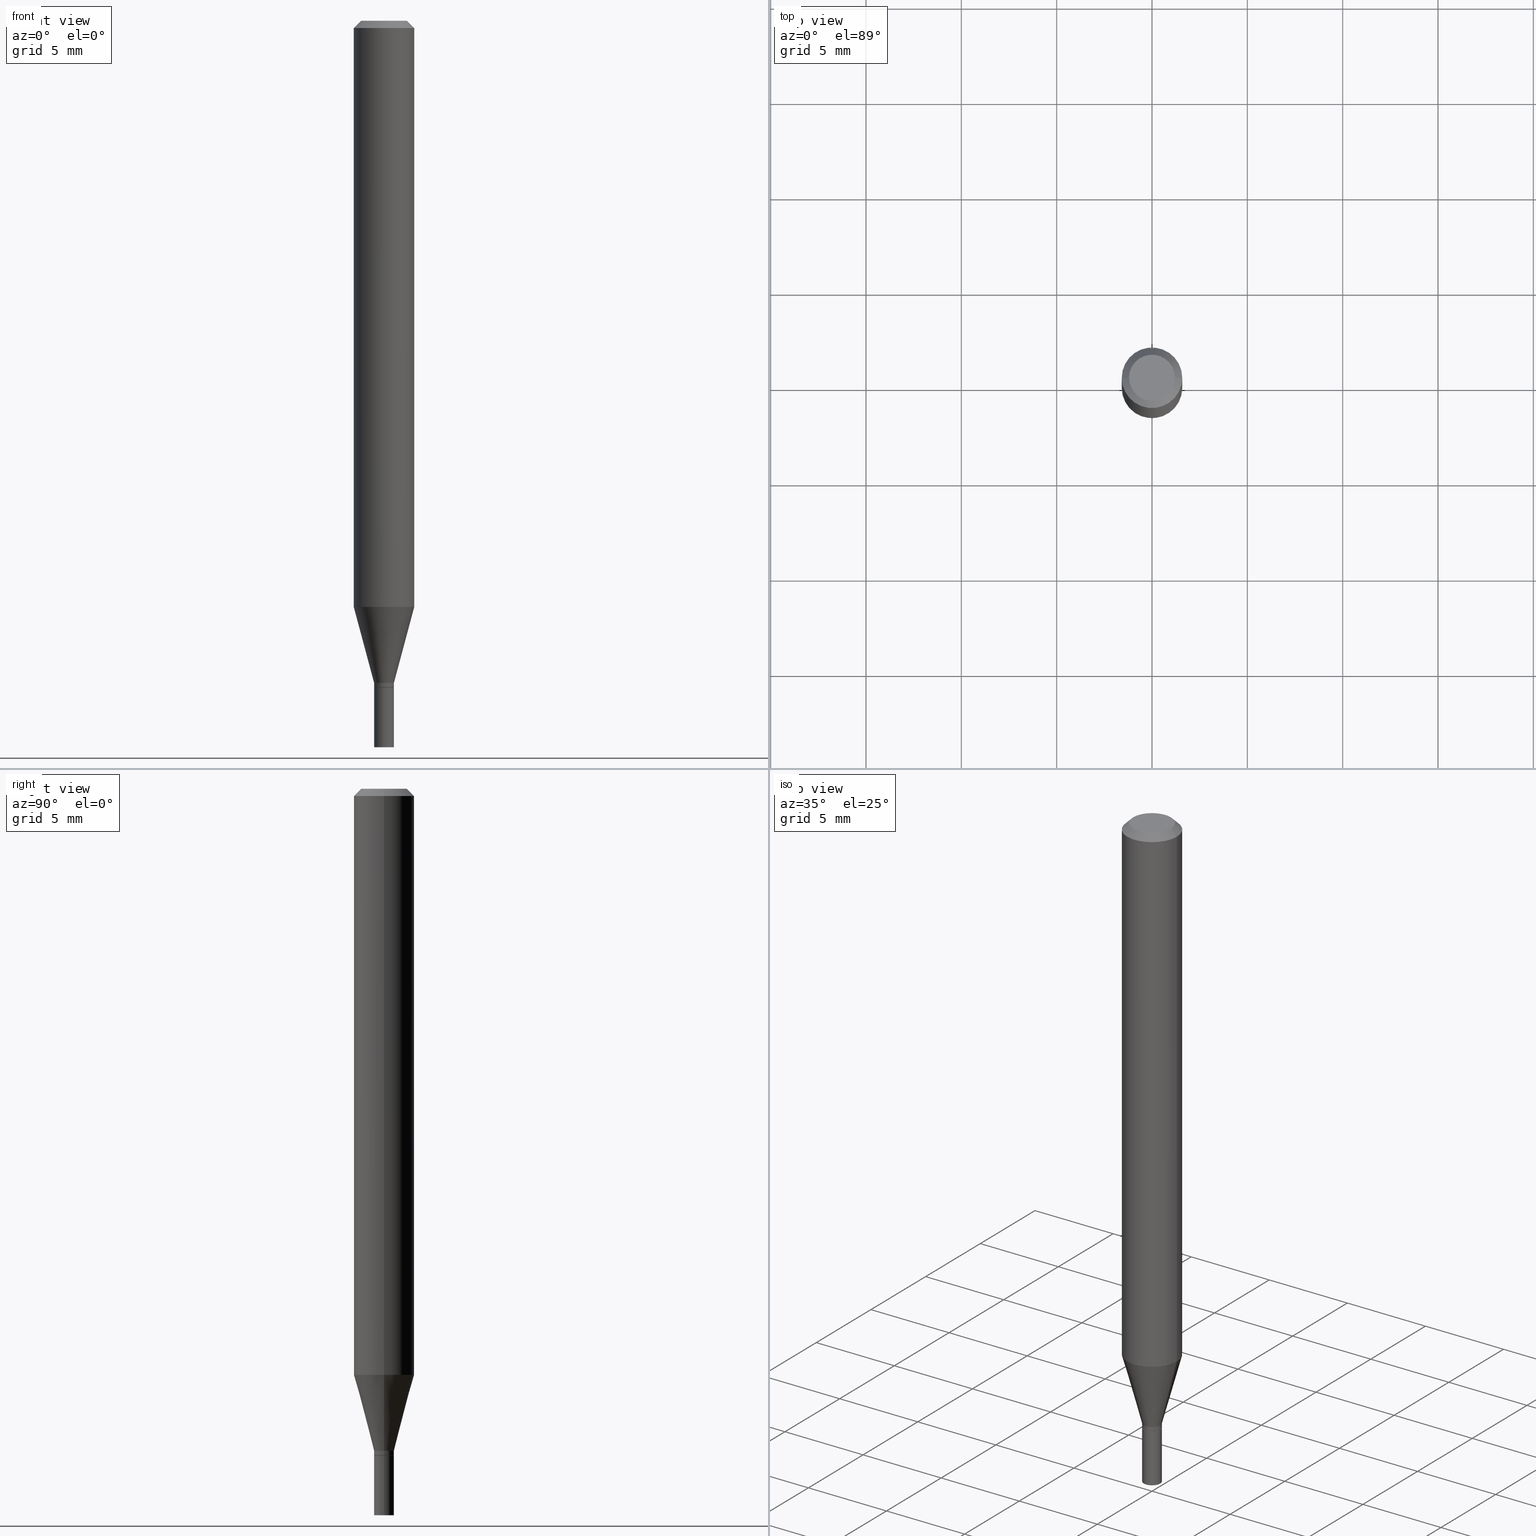
[diagram: canonical four-view strip — front | top / right | iso, engineering-drawing reading convention]
A machine part, canonical four-view strip (front | top / right | iso — engineering-drawing reading convention). The complete STEP part file that produces these views, byte-faithful:
ISO-10303-21;
HEADER;
FILE_DESCRIPTION (( 'STEP AP203' ),
    '1' );
FILE_NAME ('00479.STEP',
    '2024-03-19T21:19:28',
    ( '' ),
    ( '' ),
    'SwSTEP 2.0',
    'SolidWorks 2023',
    '' );
FILE_SCHEMA (( 'CONFIG_CONTROL_DESIGN' ));
ENDSEC;

DATA;
#1 = ORIENTED_EDGE ( 'NONE', *, *, #195, .T. ) ;
#2 = LINE ( 'NONE', #254, #170 ) ;
#3 = ORIENTED_EDGE ( 'NONE', *, *, #204, .F. ) ;
#4 = CARTESIAN_POINT ( 'NONE',  ( 0.02000000000000000042, -4.947429057140737540E-15, -1.377000000000000002 ) ) ;
#5 = EDGE_CURVE ( 'NONE', #395, #257, #318, .T. ) ;
#6 = AXIS2_PLACEMENT_3D ( 'NONE', #271, #225, #75 ) ;
#7 = DIRECTION ( 'NONE',  ( -2.445468806185136597E-29, 3.491481338843145583E-15, 1.000000000000000000 ) ) ;
#8 = CC_DESIGN_APPROVAL ( #155, ( #238 ) ) ;
#9 = CARTESIAN_POINT ( 'NONE',  ( 3.668203209277705088E-31, -5.237222008264718399E-17, -0.01499999999999999944 ) ) ;
#10 = DIRECTION ( 'NONE',  ( -2.445468806185136597E-29, 3.491481338843145583E-15, 1.000000000000000000 ) ) ;
#11 = DIRECTION ( 'NONE',  ( 1.000000000000000000, -6.982962677686288010E-15, 0.000000000000000000 ) ) ;
#12 = CYLINDRICAL_SURFACE ( 'NONE', #39, 0.02049999999999992453 ) ;
#13 = CARTESIAN_POINT ( 'NONE',  ( 3.367410546116933466E-29, -4.807769803587011733E-15, -1.377000000000000002 ) ) ;
#14 = AXIS2_PLACEMENT_3D ( 'NONE', #401, #83, #229 ) ;
#15 = CIRCLE ( 'NONE', #458, 0.06250000000000000000 ) ;
#16 =( LENGTH_UNIT ( ) NAMED_UNIT ( * ) SI_UNIT ( $, .METRE. ) );
#17 = FACE_OUTER_BOUND ( 'NONE', #144, .T. ) ;
#18 = FACE_OUTER_BOUND ( 'NONE', #186, .T. ) ;
#19 = DIRECTION ( 'NONE',  ( 1.000000000000000000, -6.982962677686266711E-15, 0.000000000000000000 ) ) ;
#20 = CC_DESIGN_PERSON_AND_ORGANIZATION_ASSIGNMENT ( #100, #243, ( #382 ) ) ;
#21 = VERTEX_POINT ( 'NONE', #265 ) ;
#22 = CLOSED_SHELL ( 'NONE', ( #27, #263, #348, #182 ) ) ;
#23 = AXIS2_PLACEMENT_3D ( 'NONE', #129, #383, #19 ) ;
#24 = ADVANCED_BREP_SHAPE_REPRESENTATION ( '00479', ( #359, #194, #424 ), #391 ) ;
#25 = EDGE_LOOP ( 'NONE', ( #325, #217, #198, #67 ) ) ;
#26 = PERSON_AND_ORGANIZATION_ROLE ( 'classification_officer' ) ;
#27 = ADVANCED_FACE ( 'NONE', ( #17 ), #220, .T. ) ;
#28 = PERSON_AND_ORGANIZATION ( #301, #153 ) ;
#29 = CARTESIAN_POINT ( 'NONE',  ( 3.342955858055081921E-29, -4.772854990198580872E-15, -1.367000000000000215 ) ) ;
#30 = APPLICATION_PROTOCOL_DEFINITION ( 'international standard', 'config_control_design', 1994, #427 ) ;
#31 = CONICAL_SURFACE ( 'NONE', #233, 0.02000000000000000042, 0.7853981633974739252 ) ;
#32 = CC_DESIGN_APPROVAL ( #253, ( #449 ) ) ;
#33 = ORIENTED_EDGE ( 'NONE', *, *, #303, .T. ) ;
#34 = CARTESIAN_POINT ( 'NONE',  ( 2.959638077068758052E-29, -4.225578788688450652E-15, -1.210253866082107610 ) ) ;
#35 = APPROVAL_ROLE ( '' ) ;
#36 = VERTEX_POINT ( 'NONE', #330 ) ;
#37 = EDGE_CURVE ( 'NONE', #459, #102, #390, .T. ) ;
#38 = ORIENTED_EDGE ( 'NONE', *, *, #72, .F. ) ;
#39 = AXIS2_PLACEMENT_3D ( 'NONE', #406, #10, #121 ) ;
#40 = VERTEX_POINT ( 'NONE', #445 ) ;
#41 = DIRECTION ( 'NONE',  ( -2.445468806185136877E-29, 3.491481338843145188E-15, 1.000000000000000000 ) ) ;
#42 = ORIENTED_EDGE ( 'NONE', *, *, #79, .F. ) ;
#43 = CARTESIAN_POINT ( 'NONE',  ( -0.06250000000000000000, -1.694886294535486249E-15, -0.01499999999999999944 ) ) ;
#44 = CARTESIAN_POINT ( 'NONE',  ( 3.367410546116933466E-29, -4.807769803587011733E-15, -1.377000000000000002 ) ) ;
#45 = AXIS2_PLACEMENT_3D ( 'NONE', #278, #201, #344 ) ;
#46 = DIMENSIONAL_EXPONENTS ( 1.000000000000000000, 0.000000000000000000, 0.000000000000000000, 0.000000000000000000, 0.000000000000000000, 0.000000000000000000, 0.000000000000000000 ) ;
#47 = CARTESIAN_POINT ( 'NONE',  ( -0.06250000000000000000, 3.840629472727444916E-16, -0.01499999999999999944 ) ) ;
#48 = DIRECTION ( 'NONE',  ( 1.000000000000000000, -6.982962677686288010E-15, 0.000000000000000000 ) ) ;
#49 = DIRECTION ( 'NONE',  ( 1.000000000000000000, -6.982962677686262766E-15, 0.000000000000000000 ) ) ;
#50 = CARTESIAN_POINT ( 'NONE',  ( -0.02049999999999992453, -4.627193729367760599E-15, -1.367000000000000215 ) ) ;
#51 = PERSON_AND_ORGANIZATION_ROLE ( 'design_supplier' ) ;
#52 = ORIENTED_EDGE ( 'NONE', *, *, #400, .F. ) ;
#53 = CIRCLE ( 'NONE', #340, 0.02000000000000000042 ) ;
#54 = DIRECTION ( 'NONE',  ( -2.438088387897960049E-29, 3.491481338843145188E-15, 1.000000000000000000 ) ) ;
#55 = CARTESIAN_POINT ( 'NONE',  ( 1.431507348926021194E-16, 0.02049999999999519568, -1.377000000000000002 ) ) ;
#56 = DIRECTION ( 'NONE',  ( 2.445468806185136597E-29, -3.491481338843145583E-15, -1.000000000000000000 ) ) ;
#57 = EDGE_LOOP ( 'NONE', ( #64, #73, #70, #262 ) ) ;
#58 = DIRECTION ( 'NONE',  ( -2.445468806185136597E-29, 3.491481338843145583E-15, 1.000000000000000000 ) ) ;
#59 = DIRECTION ( 'NONE',  ( -2.445468806185136877E-29, 3.491481338843145188E-15, 1.000000000000000000 ) ) ;
#60 = CIRCLE ( 'NONE', #429, 0.02049999999999992453 ) ;
#61 = CARTESIAN_POINT ( 'NONE',  ( 0.06250000000000000000, -4.364351673553916694E-16, 3.047610484872459871E-30 ) ) ;
#62 = AXIS2_PLACEMENT_3D ( 'NONE', #199, #272, #342 ) ;
#63 = EDGE_CURVE ( 'NONE', #216, #352, #111, .T. ) ;
#64 = ORIENTED_EDGE ( 'NONE', *, *, #374, .F. ) ;
#65 = DIRECTION ( 'NONE',  ( -2.445468806185136597E-29, 3.491481338843145583E-15, 1.000000000000000000 ) ) ;
#66 = PRODUCT_DEFINITION_FORMATION_WITH_SPECIFIED_SOURCE ( 'ANY', '', #382, .NOT_KNOWN. ) ;
#67 = ORIENTED_EDGE ( 'NONE', *, *, #389, .F. ) ;
#68 = ADVANCED_FACE ( 'NONE', ( #368 ), #221, .T. ) ;
#69 = ORIENTED_EDGE ( 'NONE', *, *, #160, .T. ) ;
#70 = ORIENTED_EDGE ( 'NONE', *, *, #387, .T. ) ;
#71 = LINE ( 'NONE', #103, #197 ) ;
#72 = EDGE_CURVE ( 'NONE', #135, #261, #175, .T. ) ;
#73 = ORIENTED_EDGE ( 'NONE', *, *, #117, .T. ) ;
#74 = ORIENTED_EDGE ( 'NONE', *, *, #464, .T. ) ;
#75 = DIRECTION ( 'NONE',  ( -1.000000000000000000, 6.982962677686265922E-15, -4.876176775795935793E-29 ) ) ;
#76 = VECTOR ( 'NONE', #439, 39.37007874015748143 ) ;
#77 = DIRECTION ( 'NONE',  ( 1.000000000000000000, -6.982962677686284065E-15, 0.000000000000000000 ) ) ;
#78 = CIRCLE ( 'NONE', #465, 0.04749999999999999362 ) ;
#79 = EDGE_CURVE ( 'NONE', #40, #459, #122, .T. ) ;
#80 = CARTESIAN_POINT ( 'NONE',  ( 0.06250000000000000000, -4.888073874380388472E-16, -0.01499999999999999944 ) ) ;
#81 = CARTESIAN_POINT ( 'NONE',  ( 3.342955858055081921E-29, -4.772854990198580872E-15, -1.367000000000000215 ) ) ;
#82 = CARTESIAN_POINT ( 'NONE',  ( 3.367410546116933466E-29, -4.807769803587011733E-15, -1.377000000000000002 ) ) ;
#83 = DIRECTION ( 'NONE',  ( -2.445468806185136597E-29, 3.491481338843145583E-15, 1.000000000000000000 ) ) ;
#84 = DIRECTION ( 'NONE',  ( -2.445468806185136597E-29, 3.491481338843145583E-15, 1.000000000000000000 ) ) ;
#85 = DIRECTION ( 'NONE',  ( 0.2588190451025216277, 1.565188264969619995E-15, 0.9659258262890679791 ) ) ;
#86 = ADVANCED_FACE ( 'NONE', ( #298 ), #267, .T. ) ;
#87 = DIRECTION ( 'NONE',  ( -2.445468806185136597E-29, 3.491481338843145583E-15, 1.000000000000000000 ) ) ;
#88 = AXIS2_PLACEMENT_3D ( 'NONE', #131, #84, #309 ) ;
#89 = DIRECTION ( 'NONE',  ( 1.000000000000000000, -6.982962677686265922E-15, 4.876176775795935793E-29 ) ) ;
#90 = CYLINDRICAL_SURFACE ( 'NONE', #88, 0.06250000000000000000 ) ;
#91 = CARTESIAN_POINT ( 'NONE',  ( -0.02000000000000000042, -4.665661256434990780E-15, -1.377000000000000002 ) ) ;
#92 = ORIENTED_EDGE ( 'NONE', *, *, #209, .T. ) ;
#93 = MECHANICAL_CONTEXT ( 'NONE', #231, 'mechanical' ) ;
#94 = DIRECTION ( 'NONE',  ( 1.000000000000000000, -6.982962677686284065E-15, 0.000000000000000000 ) ) ;
#95 = ORIENTED_EDGE ( 'NONE', *, *, #416, .F. ) ;
#96 = AXIS2_PLACEMENT_3D ( 'NONE', #399, #442, #119 ) ;
#97 = CALENDAR_DATE ( 2024, 19, 3 ) ;
#98 = CIRCLE ( 'NONE', #45, 0.02050000000000000086 ) ;
#99 = CYLINDRICAL_SURFACE ( 'NONE', #305, 0.02050000000000000086 ) ;
#100 = PERSON_AND_ORGANIZATION ( #301, #153 ) ;
#101 = ADVANCED_FACE ( 'NONE', ( #338 ), #273, .F. ) ;
#102 = VERTEX_POINT ( 'NONE', #43 ) ;
#103 = CARTESIAN_POINT ( 'NONE',  ( 0.02049999999999992453, -1.431507348925679518E-16, 9.996162390381630680E-31 ) ) ;
#104 = CONICAL_SURFACE ( 'NONE', #369, 0.06250000000000000000, 0.7853981633974549403 ) ;
#105 = AXIS2_PLACEMENT_3D ( 'NONE', #347, #173, #280 ) ;
#106 = VERTEX_POINT ( 'NONE', #372 ) ;
#107 = ORIENTED_EDGE ( 'NONE', *, *, #177, .T. ) ;
#108 = COORDINATED_UNIVERSAL_TIME_OFFSET ( 5, 0, .BEHIND. ) ;
#109 = EDGE_CURVE ( 'NONE', #40, #466, #331, .T. ) ;
#110 = ORIENTED_EDGE ( 'NONE', *, *, #209, .F. ) ;
#111 = CIRCLE ( 'NONE', #362, 0.02049999999999992453 ) ;
#112 = CIRCLE ( 'NONE', #350, 0.06250000000000000000 ) ;
#113 = EDGE_LOOP ( 'NONE', ( #431, #293, #187, #365 ) ) ;
#114 = CALENDAR_DATE ( 2024, 19, 3 ) ;
#115 = CARTESIAN_POINT ( 'NONE',  ( 0.06250000000000000000, -4.811533449433679005E-16, -0.01499999999999999944 ) ) ;
#116 = DIRECTION ( 'NONE',  ( -2.445468806185136597E-29, 3.491481338843145583E-15, 1.000000000000000000 ) ) ;
#117 = EDGE_CURVE ( 'NONE', #352, #216, #60, .T. ) ;
#118 = PERSON_AND_ORGANIZATION ( #301, #153 ) ;
#119 = DIRECTION ( 'NONE',  ( 1.000000000000000000, -6.982962677686267499E-15, 4.876176775795935232E-29 ) ) ;
#120 = AXIS2_PLACEMENT_3D ( 'NONE', #236, #56, #418 ) ;
#121 = DIRECTION ( 'NONE',  ( 1.000000000000000000, -6.982962677686267499E-15, 4.876176775795935232E-29 ) ) ;
#122 = LINE ( 'NONE', #115, #440 ) ;
#123 = PLANE ( 'NONE',  #62 ) ;
#124 = LENGTH_MEASURE_WITH_UNIT ( LENGTH_MEASURE( 0.02539999999999999897 ), #16 );
#125 = EDGE_CURVE ( 'NONE', #261, #135, #355, .T. ) ;
#126 = DIRECTION ( 'NONE',  ( 1.000000000000000000, -6.982962677686261977E-15, 0.000000000000000000 ) ) ;
#127 =( NAMED_UNIT ( * ) SI_UNIT ( $, .STERADIAN. ) SOLID_ANGLE_UNIT ( ) );
#128 = DIRECTION ( 'NONE',  ( -2.445468806185136877E-29, 3.491481338843145188E-15, 1.000000000000000000 ) ) ;
#129 = CARTESIAN_POINT ( 'NONE',  ( 3.668203209277705088E-31, -5.237222008264718399E-17, -0.01499999999999999944 ) ) ;
#130 = AXIS2_PLACEMENT_3D ( 'NONE', #13, #7, #159 ) ;
#131 = CARTESIAN_POINT ( 'NONE',  ( 0.000000000000000000, 0.000000000000000000, 0.000000000000000000 ) ) ;
#132 = LOCAL_TIME ( 17, 19, 28.00000000000000000, #425 ) ;
#133 = DIRECTION ( 'NONE',  ( -0.2588190451025216277, 5.211531920934551831E-15, 0.9659258262890679791 ) ) ;
#134 = DIRECTION ( 'NONE',  ( -1.000000000000000000, 6.982962677686265922E-15, -4.876176775795935793E-29 ) ) ;
#135 = VERTEX_POINT ( 'NONE', #306 ) ;
#136 = DIRECTION ( 'NONE',  ( 0.000000000000000000, 0.000000000000000000, 1.000000000000000000 ) ) ;
#137 = DIRECTION ( 'NONE',  ( -2.445468806185136877E-29, 3.491481338843145188E-15, 1.000000000000000000 ) ) ;
#138 = DATE_AND_TIME ( #456, #256 ) ;
#139 = COORDINATED_UNIVERSAL_TIME_OFFSET ( 5, 0, .BEHIND. ) ;
#140 = VECTOR ( 'NONE', #137, 39.37007874015748143 ) ;
#141 = DESIGN_CONTEXT ( 'detailed design', #427, 'design' ) ;
#142 = CALENDAR_DATE ( 2024, 19, 3 ) ;
#143 = COORDINATED_UNIVERSAL_TIME_OFFSET ( 5, 0, .BEHIND. ) ;
#144 = EDGE_LOOP ( 'NONE', ( #430, #396, #38, #169 ) ) ;
#145 = EDGE_LOOP ( 'NONE', ( #296, #324 ) ) ;
#146 = AXIS2_PLACEMENT_3D ( 'NONE', #55, #446, #134 ) ;
#147 = CONICAL_SURFACE ( 'NONE', #205, 0.02049999999999992453, 0.2617993877991502960 ) ;
#148 = ORIENTED_EDGE ( 'NONE', *, *, #125, .T. ) ;
#149 = ADVANCED_FACE ( 'NONE', ( #333 ), #104, .T. ) ;
#150 = EDGE_LOOP ( 'NONE', ( #214, #392, #361, #398 ) ) ;
#151 = CC_DESIGN_DATE_AND_TIME_ASSIGNMENT ( #138, #321, ( #449 ) ) ;
#152 = ORIENTED_EDGE ( 'NONE', *, *, #117, .F. ) ;
#153 = ORGANIZATION ( 'UNSPECIFIED', 'UNSPECIFIED', '' ) ;
#154 = DIRECTION ( 'NONE',  ( 1.000000000000000000, -6.982962677686288010E-15, 0.000000000000000000 ) ) ;
#155 = APPROVAL ( #176, 'UNSPECIFIED' ) ;
#156 = EDGE_LOOP ( 'NONE', ( #329, #148 ) ) ;
#157 = DIRECTION ( 'NONE',  ( -2.445468806185136597E-29, 3.491481338843145583E-15, 1.000000000000000000 ) ) ;
#158 = CARTESIAN_POINT ( 'NONE',  ( -0.06249999999999999306, -3.781489578838388036E-15, -1.210253866082107610 ) ) ;
#159 = DIRECTION ( 'NONE',  ( 1.000000000000000000, -6.982962677686261977E-15, 0.000000000000000000 ) ) ;
#160 = EDGE_CURVE ( 'NONE', #466, #102, #223, .T. ) ;
#161 = DIRECTION ( 'NONE',  ( -2.445468806185136597E-29, 3.491481338843145583E-15, 1.000000000000000000 ) ) ;
#162 = DIRECTION ( 'NONE',  ( -2.445468806185136597E-29, 3.491481338843145583E-15, 1.000000000000000000 ) ) ;
#163 = CC_DESIGN_PERSON_AND_ORGANIZATION_ASSIGNMENT ( #118, #51, ( #66 ) ) ;
#164 =( NAMED_UNIT ( * ) PLANE_ANGLE_UNIT ( ) SI_UNIT ( $, .RADIAN. ) );
#165 = APPROVAL ( #317, 'UNSPECIFIED' ) ;
#166 = CARTESIAN_POINT ( 'NONE',  ( 2.959638077068758052E-29, -4.225578788688450652E-15, -1.210253866082107610 ) ) ;
#167 = DIRECTION ( 'NONE',  ( 1.000000000000000000, -6.982962677686284065E-15, 0.000000000000000000 ) ) ;
#168 = VECTOR ( 'NONE', #59, 39.37007874015748143 ) ;
#169 = ORIENTED_EDGE ( 'NONE', *, *, #177, .F. ) ;
#170 = VECTOR ( 'NONE', #210, 39.37007874015748143 ) ;
#171 = APPROVAL_PERSON_ORGANIZATION ( #286, #253, #35 ) ;
#172 = ADVANCED_FACE ( 'NONE', ( #302 ), #193, .T. ) ;
#173 = DIRECTION ( 'NONE',  ( -2.445468806185136597E-29, 3.491481338843145583E-15, 1.000000000000000000 ) ) ;
#174 = EDGE_LOOP ( 'NONE', ( #52, #313, #336, #341 ) ) ;
#175 = CIRCLE ( 'NONE', #423, 0.02050000000000000086 ) ;
#176 = APPROVAL_STATUS ( 'not_yet_approved' ) ;
#177 = EDGE_CURVE ( 'NONE', #384, #135, #380, .T. ) ;
#178 = ORIENTED_EDGE ( 'NONE', *, *, #224, .T. ) ;
#179 = DIRECTION ( 'NONE',  ( -2.445468806185136597E-29, 3.491481338843145583E-15, 1.000000000000000000 ) ) ;
#180 = EDGE_LOOP ( 'NONE', ( #327, #74, #3, #95 ) ) ;
#181 = SHAPE_DEFINITION_REPRESENTATION ( #228, #24 ) ;
#182 = ADVANCED_FACE ( 'NONE', ( #234 ), #241, .F. ) ;
#183 = EDGE_LOOP ( 'NONE', ( #33, #428, #242, #110 ) ) ;
#184 = DATE_AND_TIME ( #114, #132 ) ;
#185 = VECTOR ( 'NONE', #133, 39.37007874015748143 ) ;
#186 = EDGE_LOOP ( 'NONE', ( #42, #356, #69, #1 ) ) ;
#187 = ORIENTED_EDGE ( 'NONE', *, *, #357, .F. ) ;
#188 = CARTESIAN_POINT ( 'NONE',  ( 4.865611903635008365E-45, -6.946804277620623666E-31, -1.989643822619527736E-16 ) ) ;
#189 = PERSON_AND_ORGANIZATION ( #301, #153 ) ;
#190 = EDGE_CURVE ( 'NONE', #36, #384, #98, .T. ) ;
#191 = CC_DESIGN_APPROVAL ( #165, ( #66 ) ) ;
#192 = DIRECTION ( 'NONE',  ( -2.445468806185136597E-29, 3.491481338843145583E-15, 1.000000000000000000 ) ) ;
#193 = CYLINDRICAL_SURFACE ( 'NONE', #349, 0.06250000000000000000 ) ;
#194 = MANIFOLD_SOLID_BREP ( 'Body-Move/Copy2[2]', #463 ) ;
#195 = EDGE_CURVE ( 'NONE', #102, #459, #268, .T. ) ;
#196 = DIRECTION ( 'NONE',  ( 0.7071067811865522357, -7.319954787623271823E-15, -0.7071067811865427988 ) ) ;
#197 = VECTOR ( 'NONE', #41, 39.37007874015748143 ) ;
#198 = ORIENTED_EDGE ( 'NONE', *, *, #416, .T. ) ;
#199 = CARTESIAN_POINT ( 'NONE',  ( 3.576687321579069994E-29, -5.368277968210015545E-15, -1.500000000000000222 ) ) ;
#200 = CARTESIAN_POINT ( 'NONE',  ( 3.367410546116933466E-29, -4.807769803587011733E-15, -1.377000000000000002 ) ) ;
#201 = DIRECTION ( 'NONE',  ( -2.445468806185136597E-29, 3.491481338843145583E-15, 1.000000000000000000 ) ) ;
#202 = CALENDAR_DATE ( 2024, 19, 3 ) ;
#203 = DIRECTION ( 'NONE',  ( 1.000000000000000000, -6.982962677686267499E-15, 4.876176775795935232E-29 ) ) ;
#204 = EDGE_CURVE ( 'NONE', #21, #462, #15, .T. ) ;
#205 = AXIS2_PLACEMENT_3D ( 'NONE', #448, #161, #381 ) ;
#206 = DATE_AND_TIME ( #202, #212 ) ;
#207 = VERTEX_POINT ( 'NONE', #438 ) ;
#208 = DATE_TIME_ROLE ( 'creation_date' ) ;
#209 = EDGE_CURVE ( 'NONE', #207, #216, #402, .T. ) ;
#210 = DIRECTION ( 'NONE',  ( -2.445468806185136877E-29, 3.491481338843145188E-15, 1.000000000000000000 ) ) ;
#211 = ORIENTED_EDGE ( 'NONE', *, *, #343, .F. ) ;
#212 = LOCAL_TIME ( 17, 19, 28.00000000000000000, #139 ) ;
#213 = PERSON_AND_ORGANIZATION ( #301, #153 ) ;
#214 = ORIENTED_EDGE ( 'NONE', *, *, #204, .T. ) ;
#215 = CARTESIAN_POINT ( 'NONE',  ( -0.06250000000000000000, 4.440892098500626162E-16, -3.074334431409316114E-30 ) ) ;
#216 = VERTEX_POINT ( 'NONE', #367 ) ;
#217 = ORIENTED_EDGE ( 'NONE', *, *, #5, .T. ) ;
#218 = EDGE_LOOP ( 'NONE', ( #287, #178, #92, #152 ) ) ;
#219 = DIRECTION ( 'NONE',  ( -2.445468806185136597E-29, 3.491481338843145583E-15, 1.000000000000000000 ) ) ;
#220 = CYLINDRICAL_SURFACE ( 'NONE', #96, 0.02050000000000000086 ) ;
#221 = CONICAL_SURFACE ( 'NONE', #339, 0.02000000000000000042, 0.7853981633974739252 ) ;
#222 = AXIS2_PLACEMENT_3D ( 'NONE', #29, #411, #354 ) ;
#223 = LINE ( 'NONE', #47, #76 ) ;
#224 = EDGE_CURVE ( 'NONE', #106, #207, #283, .T. ) ;
#225 = DIRECTION ( 'NONE',  ( 2.438088387897960049E-29, -3.491481338843145188E-15, -1.000000000000000000 ) ) ;
#226 = DIRECTION ( 'NONE',  ( 0.7071067811865656694, -2.468850131082446387E-15, 0.7071067811865294761 ) ) ;
#227 = DIRECTION ( 'NONE',  ( 1.000000000000000000, -6.982962677686284065E-15, 0.000000000000000000 ) ) ;
#228 = PRODUCT_DEFINITION_SHAPE ( 'NONE', 'NONE',  #238 ) ;
#229 = DIRECTION ( 'NONE',  ( 1.000000000000000000, -6.982962677686266711E-15, 0.000000000000000000 ) ) ;
#230 = CARTESIAN_POINT ( 'NONE',  ( 4.865611903635008365E-45, -6.946804277620623666E-31, -1.989643822619527736E-16 ) ) ;
#231 = APPLICATION_CONTEXT ( 'configuration controlled 3d designs of mechanical parts and assemblies' ) ;
#232 = AXIS2_PLACEMENT_3D ( 'NONE', #188, #192, #373 ) ;
#233 = AXIS2_PLACEMENT_3D ( 'NONE', #82, #239, #227 ) ;
#234 = FACE_OUTER_BOUND ( 'NONE', #156, .T. ) ;
#235 = LOCAL_TIME ( 17, 19, 28.00000000000000000, #108 ) ;
#236 = CARTESIAN_POINT ( 'NONE',  ( 3.668203209277705088E-31, -5.237222008264718399E-17, -0.01499999999999999944 ) ) ;
#237 = CARTESIAN_POINT ( 'NONE',  ( 0.02049999999999992453, -4.916005725091148898E-15, -1.367000000000000215 ) ) ;
#238 = PRODUCT_DEFINITION ( 'UNKNOWN', '', #66, #141 ) ;
#239 = DIRECTION ( 'NONE',  ( -2.445468806185136597E-29, 3.491481338843145583E-15, 1.000000000000000000 ) ) ;
#240 = CARTESIAN_POINT ( 'NONE',  ( 0.000000000000000000, 0.000000000000000000, 0.000000000000000000 ) ) ;
#241 = PLANE ( 'NONE',  #146 ) ;
#242 = ORIENTED_EDGE ( 'NONE', *, *, #63, .F. ) ;
#243 = PERSON_AND_ORGANIZATION_ROLE ( 'design_owner' ) ;
#244 = LINE ( 'NONE', #314, #140 ) ;
#245 = SECURITY_CLASSIFICATION_LEVEL ( 'unclassified' ) ;
#246 = AXIS2_PLACEMENT_3D ( 'NONE', #81, #266, #408 ) ;
#247 = UNCERTAINTY_MEASURE_WITH_UNIT (LENGTH_MEASURE( 1.000000000000000082E-05 ), #409, 'distance_accuracy_value', 'NONE');
#248 = VECTOR ( 'NONE', #128, 39.37007874015748143 ) ;
#249 = CC_DESIGN_SECURITY_CLASSIFICATION ( #449, ( #66 ) ) ;
#250 = DATE_AND_TIME ( #97, #276 ) ;
#251 = DIRECTION ( 'NONE',  ( -2.445468806185136597E-29, 3.491481338843145583E-15, 1.000000000000000000 ) ) ;
#252 = ADVANCED_FACE ( 'NONE', ( #447 ), #90, .T. ) ;
#253 = APPROVAL ( #260, 'UNSPECIFIED' ) ;
#254 = CARTESIAN_POINT ( 'NONE',  ( -0.02049999999999992453, 1.456612608308200019E-16, -1.008381693502252116E-30 ) ) ;
#255 = ORIENTED_EDGE ( 'NONE', *, *, #328, .F. ) ;
#256 = LOCAL_TIME ( 17, 19, 28.00000000000000000, #143 ) ;
#257 = VERTEX_POINT ( 'NONE', #311 ) ;
#258 = EDGE_CURVE ( 'NONE', #466, #40, #78, .T. ) ;
#259 = CARTESIAN_POINT ( 'NONE',  ( 0.02050000000000000086, -5.380372743157286991E-15, -1.500000000000000222 ) ) ;
#260 = APPROVAL_STATUS ( 'not_yet_approved' ) ;
#261 = VERTEX_POINT ( 'NONE', #376 ) ;
#262 = ORIENTED_EDGE ( 'NONE', *, *, #5, .F. ) ;
#263 = ADVANCED_FACE ( 'NONE', ( #443 ), #123, .F. ) ;
#264 = ORIENTED_EDGE ( 'NONE', *, *, #190, .F. ) ;
#265 = CARTESIAN_POINT ( 'NONE',  ( 0.06249999999999999306, -4.662013956043841533E-15, -1.210253866082107610 ) ) ;
#266 = DIRECTION ( 'NONE',  ( -2.445468806185136597E-29, 3.491481338843145583E-15, 1.000000000000000000 ) ) ;
#267 = CONICAL_SURFACE ( 'NONE', #291, 0.02049999999999992453, 0.2617993877991502960 ) ;
#268 = CIRCLE ( 'NONE', #23, 0.06250000000000000000 ) ;
#269 = CARTESIAN_POINT ( 'NONE',  ( 3.342955858055081921E-29, -4.772854990198580872E-15, -1.367000000000000215 ) ) ;
#270 = PRODUCT_RELATED_PRODUCT_CATEGORY ( 'detail', '', ( #382 ) ) ;
#271 = CARTESIAN_POINT ( 'NONE',  ( 3.316907271900976096E-16, 0.04749999999999999362, -2.653275547260257586E-16 ) ) ;
#272 = DIRECTION ( 'NONE',  ( -2.438088387897960049E-29, 3.491481338843145188E-15, 1.000000000000000000 ) ) ;
#273 = PLANE ( 'NONE',  #6 ) ;
#274 = CARTESIAN_POINT ( 'NONE',  ( -0.02049999999999992453, -4.660362802086769956E-15, -1.376500000000000279 ) ) ;
#275 = ADVANCED_FACE ( 'NONE', ( #18 ), #319, .T. ) ;
#276 = LOCAL_TIME ( 17, 19, 28.00000000000000000, #421 ) ;
#277 = PLANE ( 'NONE',  #371 ) ;
#278 = CARTESIAN_POINT ( 'NONE',  ( 3.668203209277704895E-29, -5.237222008264718177E-15, -1.500000000000000222 ) ) ;
#279 = CARTESIAN_POINT ( 'NONE',  ( 0.000000000000000000, 0.000000000000000000, 0.000000000000000000 ) ) ;
#280 = DIRECTION ( 'NONE',  ( 1.000000000000000000, -6.982962677686261977E-15, 0.000000000000000000 ) ) ;
#281 = CARTESIAN_POINT ( 'NONE',  ( 0.000000000000000000, 0.000000000000000000, 0.000000000000000000 ) ) ;
#282 = FACE_OUTER_BOUND ( 'NONE', #375, .T. ) ;
#283 = CIRCLE ( 'NONE', #297, 0.02000000000000000042 ) ;
#284 = APPROVAL_ROLE ( '' ) ;
#285 = CARTESIAN_POINT ( 'NONE',  ( 3.367410546116933466E-29, -4.807769803587011733E-15, -1.377000000000000002 ) ) ;
#286 = PERSON_AND_ORGANIZATION ( #301, #153 ) ;
#287 = ORIENTED_EDGE ( 'NONE', *, *, #295, .F. ) ;
#288 = CARTESIAN_POINT ( 'NONE',  ( -0.02049999999999992453, -4.204341654103073529E-15, -1.367000000000000215 ) ) ;
#289 = ADVANCED_FACE ( 'NONE', ( #422 ), #277, .F. ) ;
#290 = EDGE_LOOP ( 'NONE', ( #420, #322, #294, #394 ) ) ;
#291 = AXIS2_PLACEMENT_3D ( 'NONE', #269, #219, #11 ) ;
#292 = VECTOR ( 'NONE', #226, 39.37007874015748143 ) ;
#293 = ORIENTED_EDGE ( 'NONE', *, *, #374, .T. ) ;
#294 = ORIENTED_EDGE ( 'NONE', *, *, #37, .T. ) ;
#295 = EDGE_CURVE ( 'NONE', #106, #352, #415, .T. ) ;
#296 = ORIENTED_EDGE ( 'NONE', *, *, #258, .T. ) ;
#297 = AXIS2_PLACEMENT_3D ( 'NONE', #304, #87, #167 ) ;
#298 = FACE_OUTER_BOUND ( 'NONE', #180, .T. ) ;
#299 = DIRECTION ( 'NONE',  ( 2.445468806185136597E-29, -3.491481338843145583E-15, -1.000000000000000000 ) ) ;
#300 = DIRECTION ( 'NONE',  ( -2.445468806185136597E-29, 3.491481338843145583E-15, 1.000000000000000000 ) ) ;
#301 = PERSON ( 'UNSPECIFIED', 'UNSPECIFIED', 'UNSPECIFIED', ('UNSPECIFIED'), ('UNSPECIFIED'), ('UNSPECIFIED') ) ;
#302 = FACE_OUTER_BOUND ( 'NONE', #150, .T. ) ;
#303 = EDGE_CURVE ( 'NONE', #207, #106, #53, .T. ) ;
#304 = CARTESIAN_POINT ( 'NONE',  ( 3.367410546116933466E-29, -4.807769803587011733E-15, -1.377000000000000002 ) ) ;
#305 = AXIS2_PLACEMENT_3D ( 'NONE', #452, #251, #388 ) ;
#306 = CARTESIAN_POINT ( 'NONE',  ( 0.02050000000000000086, -4.950920538479579759E-15, -1.377000000000000002 ) ) ;
#307 = DIRECTION ( 'NONE',  ( 1.000000000000000000, -6.982962677686267499E-15, 4.852736867747366768E-29 ) ) ;
#308 = CARTESIAN_POINT ( 'NONE',  ( 3.367410546116933466E-29, -4.807769803587011733E-15, -1.377000000000000002 ) ) ;
#309 = DIRECTION ( 'NONE',  ( 1.000000000000000000, -6.982962677686266711E-15, 4.876176775795935793E-29 ) ) ;
#310 = LINE ( 'NONE', #61, #248 ) ;
#311 = CARTESIAN_POINT ( 'NONE',  ( 0.02049999999999992453, -4.916005725091148898E-15, -1.367000000000000215 ) ) ;
#312 = CIRCLE ( 'NONE', #105, 0.02050000000000000086 ) ;
#313 = ORIENTED_EDGE ( 'NONE', *, *, #389, .T. ) ;
#314 = CARTESIAN_POINT ( 'NONE',  ( -0.02050000000000000086, 1.456612608308205442E-16, -1.008381693502255795E-30 ) ) ;
#315 = PERSON_AND_ORGANIZATION ( #301, #153 ) ;
#316 = FACE_OUTER_BOUND ( 'NONE', #57, .T. ) ;
#317 = APPROVAL_STATUS ( 'not_yet_approved' ) ;
#318 = CIRCLE ( 'NONE', #246, 0.02049999999999992453 ) ;
#319 = CONICAL_SURFACE ( 'NONE', #120, 0.06250000000000000000, 0.7853981633974549403 ) ;
#320 = DATE_AND_TIME ( #142, #235 ) ;
#321 = DATE_TIME_ROLE ( 'classification_date' ) ;
#322 = ORIENTED_EDGE ( 'NONE', *, *, #79, .T. ) ;
#323 = EDGE_CURVE ( 'NONE', #21, #459, #310, .T. ) ;
#324 = ORIENTED_EDGE ( 'NONE', *, *, #109, .T. ) ;
#325 = ORIENTED_EDGE ( 'NONE', *, *, #464, .F. ) ;
#326 = VECTOR ( 'NONE', #334, 39.37007874015748143 ) ;
#327 = ORIENTED_EDGE ( 'NONE', *, *, #357, .T. ) ;
#328 = EDGE_CURVE ( 'NONE', #384, #36, #312, .T. ) ;
#329 = ORIENTED_EDGE ( 'NONE', *, *, #72, .T. ) ;
#330 = CARTESIAN_POINT ( 'NONE',  ( -0.02050000000000000086, -4.876834645095045076E-15, -1.500000000000000222 ) ) ;
#331 = CIRCLE ( 'NONE', #232, 0.04749999999999999362 ) ;
#332 = APPROVAL_PERSON_ORGANIZATION ( #28, #165, #284 ) ;
#333 = FACE_OUTER_BOUND ( 'NONE', #290, .T. ) ;
#334 = DIRECTION ( 'NONE',  ( -2.445468806185136877E-29, 3.491481338843145188E-15, 1.000000000000000000 ) ) ;
#335 = ADVANCED_FACE ( 'NONE', ( #316 ), #455, .T. ) ;
#336 = ORIENTED_EDGE ( 'NONE', *, *, #323, .T. ) ;
#337 = FACE_OUTER_BOUND ( 'NONE', #25, .T. ) ;
#338 = FACE_OUTER_BOUND ( 'NONE', #145, .T. ) ;
#339 = AXIS2_PLACEMENT_3D ( 'NONE', #44, #366, #77 ) ;
#340 = AXIS2_PLACEMENT_3D ( 'NONE', #200, #65, #94 ) ;
#341 = ORIENTED_EDGE ( 'NONE', *, *, #195, .F. ) ;
#342 = DIRECTION ( 'NONE',  ( 1.000000000000000000, -6.982962677686265922E-15, 4.876176775795935793E-29 ) ) ;
#343 = EDGE_CURVE ( 'NONE', #36, #261, #244, .T. ) ;
#344 = DIRECTION ( 'NONE',  ( 1.000000000000000000, -6.982962677686261977E-15, 0.000000000000000000 ) ) ;
#345 = CC_DESIGN_PERSON_AND_ORGANIZATION_ASSIGNMENT ( #213, #26, ( #449 ) ) ;
#346 = EDGE_LOOP ( 'NONE', ( #363, #358 ) ) ;
#347 = CARTESIAN_POINT ( 'NONE',  ( 3.668203209277704895E-29, -5.237222008264718177E-15, -1.500000000000000222 ) ) ;
#348 = ADVANCED_FACE ( 'NONE', ( #282 ), #99, .T. ) ;
#349 = AXIS2_PLACEMENT_3D ( 'NONE', #281, #419, #351 ) ;
#350 = AXIS2_PLACEMENT_3D ( 'NONE', #34, #179, #461 ) ;
#351 = DIRECTION ( 'NONE',  ( 1.000000000000000000, -6.982962677686266711E-15, 4.876176775795935793E-29 ) ) ;
#352 = VERTEX_POINT ( 'NONE', #274 ) ;
#353 = APPROVAL_DATE_TIME ( #206, #155 ) ;
#354 = DIRECTION ( 'NONE',  ( 1.000000000000000000, -6.982962677686288010E-15, 0.000000000000000000 ) ) ;
#355 = CIRCLE ( 'NONE', #130, 0.02050000000000000086 ) ;
#356 = ORIENTED_EDGE ( 'NONE', *, *, #258, .F. ) ;
#357 = EDGE_CURVE ( 'NONE', #257, #395, #397, .T. ) ;
#358 = ORIENTED_EDGE ( 'NONE', *, *, #224, .F. ) ;
#359 = MANIFOLD_SOLID_BREP ( 'Body-Move/Copy2[1]', #22 ) ;
#360 = APPROVAL_DATE_TIME ( #320, #253 ) ;
#361 = ORIENTED_EDGE ( 'NONE', *, *, #37, .F. ) ;
#362 = AXIS2_PLACEMENT_3D ( 'NONE', #405, #162, #154 ) ;
#363 = ORIENTED_EDGE ( 'NONE', *, *, #303, .F. ) ;
#364 = VECTOR ( 'NONE', #386, 39.37007874015748143 ) ;
#365 = ORIENTED_EDGE ( 'NONE', *, *, #387, .F. ) ;
#366 = DIRECTION ( 'NONE',  ( -2.445468806185136597E-29, 3.491481338843145583E-15, 1.000000000000000000 ) ) ;
#367 = CARTESIAN_POINT ( 'NONE',  ( 0.02049999999999992453, -4.949174797810158255E-15, -1.376500000000000279 ) ) ;
#368 = FACE_OUTER_BOUND ( 'NONE', #183, .T. ) ;
#369 = AXIS2_PLACEMENT_3D ( 'NONE', #9, #299, #437 ) ;
#370 = CC_DESIGN_DATE_AND_TIME_ASSIGNMENT ( #250, #208, ( #238 ) ) ;
#371 = AXIS2_PLACEMENT_3D ( 'NONE', #285, #54, #89 ) ;
#372 = CARTESIAN_POINT ( 'NONE',  ( -0.02000000000000000042, -4.663012029260880368E-15, -1.377000000000000002 ) ) ;
#373 = DIRECTION ( 'NONE',  ( 1.000000000000000000, -6.982962677686267499E-15, 4.852736867747366768E-29 ) ) ;
#374 = EDGE_CURVE ( 'NONE', #352, #395, #2, .T. ) ;
#375 = EDGE_LOOP ( 'NONE', ( #211, #453, #107, #434 ) ) ;
#376 = CARTESIAN_POINT ( 'NONE',  ( -0.02050000000000000086, -4.876834645095045076E-15, -1.377000000000000002 ) ) ;
#377 = VECTOR ( 'NONE', #85, 39.37007874015748143 ) ;
#378 = CC_DESIGN_PERSON_AND_ORGANIZATION_ASSIGNMENT ( #189, #410, ( #66 ) ) ;
#379 = FACE_OUTER_BOUND ( 'NONE', #218, .T. ) ;
#380 = LINE ( 'NONE', #451, #168 ) ;
#381 = DIRECTION ( 'NONE',  ( 1.000000000000000000, -6.982962677686288010E-15, 0.000000000000000000 ) ) ;
#382 = PRODUCT ( '00479', '00479', '', ( #93 ) ) ;
#383 = DIRECTION ( 'NONE',  ( -2.445468806185136597E-29, 3.491481338843145583E-15, 1.000000000000000000 ) ) ;
#384 = VERTEX_POINT ( 'NONE', #259 ) ;
#385 = PERSON_AND_ORGANIZATION ( #301, #153 ) ;
#386 = DIRECTION ( 'NONE',  ( -0.7071067811865656694, 7.493145998870420424E-15, 0.7071067811865294761 ) ) ;
#387 = EDGE_CURVE ( 'NONE', #216, #257, #71, .T. ) ;
#388 = DIRECTION ( 'NONE',  ( 1.000000000000000000, -6.982962677686267499E-15, 4.876176775795935232E-29 ) ) ;
#389 = EDGE_CURVE ( 'NONE', #462, #21, #112, .T. ) ;
#390 = CIRCLE ( 'NONE', #14, 0.06250000000000000000 ) ;
#391 =( GEOMETRIC_REPRESENTATION_CONTEXT ( 3 ) GLOBAL_UNCERTAINTY_ASSIGNED_CONTEXT ( ( #247 ) ) GLOBAL_UNIT_ASSIGNED_CONTEXT ( ( #409, #164, #127 ) ) REPRESENTATION_CONTEXT ( 'NONE', 'WORKASPACE' ) );
#392 = ORIENTED_EDGE ( 'NONE', *, *, #400, .T. ) ;
#393 = LINE ( 'NONE', #215, #326 ) ;
#394 = ORIENTED_EDGE ( 'NONE', *, *, #160, .F. ) ;
#395 = VERTEX_POINT ( 'NONE', #288 ) ;
#396 = ORIENTED_EDGE ( 'NONE', *, *, #343, .T. ) ;
#397 = CIRCLE ( 'NONE', #222, 0.02049999999999992453 ) ;
#398 = ORIENTED_EDGE ( 'NONE', *, *, #323, .F. ) ;
#399 = CARTESIAN_POINT ( 'NONE',  ( 0.000000000000000000, 0.000000000000000000, 0.000000000000000000 ) ) ;
#400 = EDGE_CURVE ( 'NONE', #462, #102, #393, .T. ) ;
#401 = CARTESIAN_POINT ( 'NONE',  ( 3.668203209277705088E-31, -5.237222008264718399E-17, -0.01499999999999999944 ) ) ;
#402 = LINE ( 'NONE', #4, #292 ) ;
#403 = AXIS2_PLACEMENT_3D ( 'NONE', #240, #58, #203 ) ;
#404 = LINE ( 'NONE', #237, #377 ) ;
#405 = CARTESIAN_POINT ( 'NONE',  ( 3.366187811713841225E-29, -4.806024062917590229E-15, -1.376500000000000279 ) ) ;
#406 = CARTESIAN_POINT ( 'NONE',  ( 0.000000000000000000, 0.000000000000000000, 0.000000000000000000 ) ) ;
#407 = ADVANCED_FACE ( 'NONE', ( #337 ), #147, .T. ) ;
#408 = DIRECTION ( 'NONE',  ( 1.000000000000000000, -6.982962677686288010E-15, 0.000000000000000000 ) ) ;
#409 =( CONVERSION_BASED_UNIT ( 'INCH', #124 ) LENGTH_UNIT ( ) NAMED_UNIT ( #46 ) );
#410 = PERSON_AND_ORGANIZATION_ROLE ( 'creator' ) ;
#411 = DIRECTION ( 'NONE',  ( -2.445468806185136597E-29, 3.491481338843145583E-15, 1.000000000000000000 ) ) ;
#412 = APPROVAL_PERSON_ORGANIZATION ( #385, #155, #460 ) ;
#413 = DIRECTION ( 'NONE',  ( -2.445468806185136597E-29, 3.491481338843145583E-15, 1.000000000000000000 ) ) ;
#414 = LINE ( 'NONE', #50, #185 ) ;
#415 = LINE ( 'NONE', #91, #364 ) ;
#416 = EDGE_CURVE ( 'NONE', #257, #21, #404, .T. ) ;
#417 = APPLICATION_PROTOCOL_DEFINITION ( 'international standard', 'config_control_design', 1994, #231 ) ;
#418 = DIRECTION ( 'NONE',  ( -1.000000000000000000, 6.982962677686266711E-15, 0.000000000000000000 ) ) ;
#419 = DIRECTION ( 'NONE',  ( -2.445468806185136597E-29, 3.491481338843145583E-15, 1.000000000000000000 ) ) ;
#420 = ORIENTED_EDGE ( 'NONE', *, *, #109, .F. ) ;
#421 = COORDINATED_UNIVERSAL_TIME_OFFSET ( 5, 0, .BEHIND. ) ;
#422 = FACE_OUTER_BOUND ( 'NONE', #346, .T. ) ;
#423 = AXIS2_PLACEMENT_3D ( 'NONE', #308, #116, #126 ) ;
#424 = AXIS2_PLACEMENT_3D ( 'NONE', #279, #136, #426 ) ;
#425 = COORDINATED_UNIVERSAL_TIME_OFFSET ( 5, 0, .BEHIND. ) ;
#426 = DIRECTION ( 'NONE',  ( 1.000000000000000000, 0.000000000000000000, 0.000000000000000000 ) ) ;
#427 = APPLICATION_CONTEXT ( 'configuration controlled 3d designs of mechanical parts and assemblies' ) ;
#428 = ORIENTED_EDGE ( 'NONE', *, *, #295, .T. ) ;
#429 = AXIS2_PLACEMENT_3D ( 'NONE', #436, #157, #48 ) ;
#430 = ORIENTED_EDGE ( 'NONE', *, *, #328, .T. ) ;
#431 = ORIENTED_EDGE ( 'NONE', *, *, #63, .T. ) ;
#432 = APPROVAL_DATE_TIME ( #184, #165 ) ;
#433 = EDGE_LOOP ( 'NONE', ( #255, #264 ) ) ;
#434 = ORIENTED_EDGE ( 'NONE', *, *, #125, .F. ) ;
#435 = ADVANCED_FACE ( 'NONE', ( #441 ), #12, .T. ) ;
#436 = CARTESIAN_POINT ( 'NONE',  ( 3.366187811713841225E-29, -4.806024062917590229E-15, -1.376500000000000279 ) ) ;
#437 = DIRECTION ( 'NONE',  ( -1.000000000000000000, 6.982962677686266711E-15, 0.000000000000000000 ) ) ;
#438 = CARTESIAN_POINT ( 'NONE',  ( 0.02000000000000000042, -4.947429057140737540E-15, -1.377000000000000002 ) ) ;
#439 = DIRECTION ( 'NONE',  ( -0.7071067811865522357, 2.468850131082306364E-15, -0.7071067811865427988 ) ) ;
#440 = VECTOR ( 'NONE', #196, 39.37007874015748143 ) ;
#441 = FACE_OUTER_BOUND ( 'NONE', #113, .T. ) ;
#442 = DIRECTION ( 'NONE',  ( -2.445468806185136597E-29, 3.491481338843145583E-15, 1.000000000000000000 ) ) ;
#443 = FACE_OUTER_BOUND ( 'NONE', #433, .T. ) ;
#444 = CARTESIAN_POINT ( 'NONE',  ( -0.04749999999999999362, 3.578768372314206562E-16, -1.989643822619551895E-16 ) ) ;
#445 = CARTESIAN_POINT ( 'NONE',  ( 0.04749999999999999362, -4.035134999187581581E-16, -1.989643822619502098E-16 ) ) ;
#446 = DIRECTION ( 'NONE',  ( 2.438088387897960049E-29, -3.491481338843145188E-15, -1.000000000000000000 ) ) ;
#447 = FACE_OUTER_BOUND ( 'NONE', #174, .T. ) ;
#448 = CARTESIAN_POINT ( 'NONE',  ( 3.342955858055081921E-29, -4.772854990198580872E-15, -1.367000000000000215 ) ) ;
#449 = SECURITY_CLASSIFICATION ( '', '', #245 ) ;
#450 = CC_DESIGN_PERSON_AND_ORGANIZATION_ASSIGNMENT ( #315, #454, ( #238 ) ) ;
#451 = CARTESIAN_POINT ( 'NONE',  ( 0.02050000000000000086, -1.431507348925684942E-16, 9.996162390381667465E-31 ) ) ;
#452 = CARTESIAN_POINT ( 'NONE',  ( 0.000000000000000000, 0.000000000000000000, 0.000000000000000000 ) ) ;
#453 = ORIENTED_EDGE ( 'NONE', *, *, #190, .T. ) ;
#454 = PERSON_AND_ORGANIZATION_ROLE ( 'creator' ) ;
#455 = CYLINDRICAL_SURFACE ( 'NONE', #403, 0.02049999999999992453 ) ;
#456 = CALENDAR_DATE ( 2024, 19, 3 ) ;
#457 = ADVANCED_FACE ( 'NONE', ( #379 ), #31, .T. ) ;
#458 = AXIS2_PLACEMENT_3D ( 'NONE', #166, #300, #49 ) ;
#459 = VERTEX_POINT ( 'NONE', #80 ) ;
#460 = APPROVAL_ROLE ( '' ) ;
#461 = DIRECTION ( 'NONE',  ( 1.000000000000000000, -6.982962677686262766E-15, 0.000000000000000000 ) ) ;
#462 = VERTEX_POINT ( 'NONE', #158 ) ;
#463 = CLOSED_SHELL ( 'NONE', ( #435, #68, #149, #172, #86, #407, #252, #275, #101, #289, #457, #335 ) ) ;
#464 = EDGE_CURVE ( 'NONE', #395, #462, #414, .T. ) ;
#465 = AXIS2_PLACEMENT_3D ( 'NONE', #230, #413, #307 ) ;
#466 = VERTEX_POINT ( 'NONE', #444 ) ;
ENDSEC;
END-ISO-10303-21;
